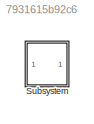
MODEL slx_7931615b92c6
KIND model
CONFIG AbsTol = auto
CONFIG EnableMultiTasking = off
CONFIG FixedStep = 1/64
CONFIG MaxStep = auto
CONFIG MinStep = auto
CONFIG RelTol = 1e-3
CONFIG SampleTimeConstraint = Unconstrained
CONFIG SolverName = ode4
CONFIG StartTime = 0.0
CONFIG StopTime = 100.0
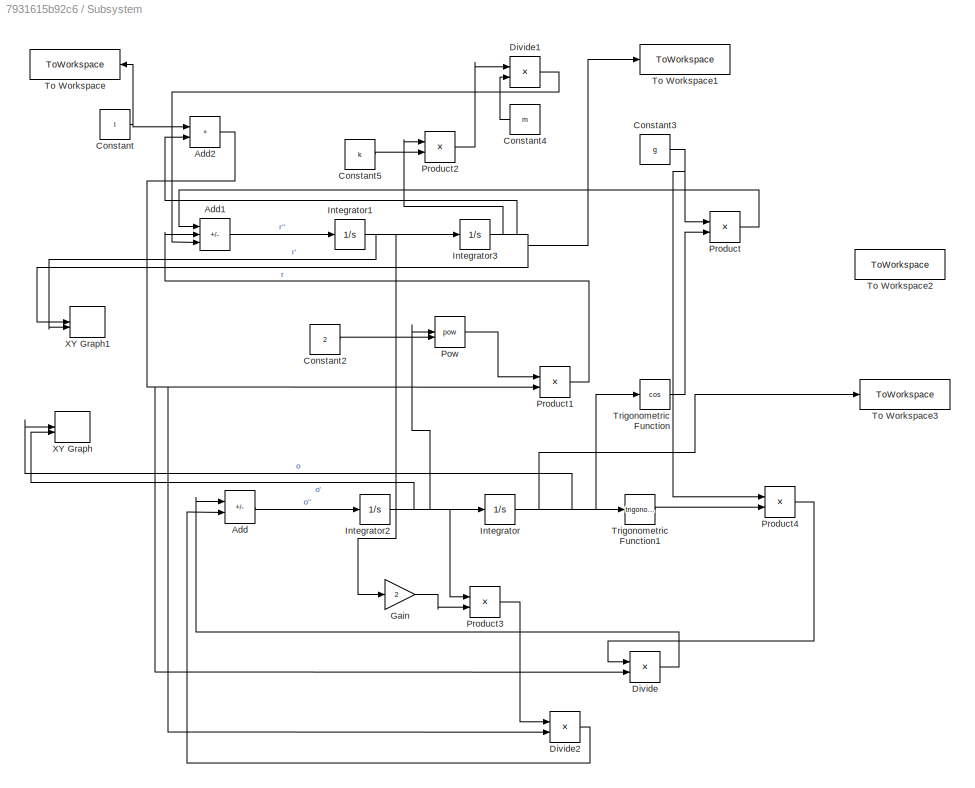
BLOCK [SubSystem] Subsystem
BLOCK [Sum] Subsystem/Add
  IconShape = rectangular
  Inputs = --
BLOCK [Sum] Subsystem/Add1
  IconShape = rectangular
  Inputs = ++-
BLOCK [Sum] Subsystem/Add2
  IconShape = rectangular
BLOCK [Constant] Subsystem/Constant
  Value = l
BLOCK [Constant] Subsystem/Constant2
  Value = 2
BLOCK [Constant] Subsystem/Constant3
  Value = g
BLOCK [Constant] Subsystem/Constant4
  NameLocation = top
  Value = m
BLOCK [Constant] Subsystem/Constant5
  Value = k
BLOCK [Product] Subsystem/Divide
  Inputs = */
BLOCK [Product] Subsystem/Divide1
  Inputs = */
BLOCK [Product] Subsystem/Divide2
  Inputs = */
BLOCK [Gain] Subsystem/Gain
  Gain = 2
BLOCK [Integrator] Subsystem/Integrator
  InitialCondition = (o0*pi)/180
BLOCK [Integrator] Subsystem/Integrator1
  InitialCondition = r_prim_0
BLOCK [Integrator] Subsystem/Integrator2
  InitialCondition = (o_prim_0*pi)/180
BLOCK [Integrator] Subsystem/Integrator3
  InitialCondition = r0
BLOCK [Math] Subsystem/Pow
  Operator = pow
  RndMeth = Zero
  SignedPower = on
BLOCK [Product] Subsystem/Product
BLOCK [Product] Subsystem/Product1
BLOCK [Product] Subsystem/Product2
BLOCK [Product] Subsystem/Product3
BLOCK [Product] Subsystem/Product4
BLOCK [ToWorkspace] Subsystem/To Workspace
  FixptAsFi = on
  MaxDataPoints = inf
  NameLocation = top
  SampleTime = -1
  SaveFormat = Timeseries
  VariableName = l_output
BLOCK [ToWorkspace] Subsystem/To Workspace1
  FixptAsFi = on
  MaxDataPoints = inf
  SampleTime = -1
  SaveFormat = Timeseries
  VariableName = r_output
BLOCK [ToWorkspace] Subsystem/To Workspace2
  FixptAsFi = on
  MaxDataPoints = inf
  SampleTime = -1
  SaveFormat = Timeseries
  VariableName = simout
BLOCK [ToWorkspace] Subsystem/To Workspace3
  FixptAsFi = on
  MaxDataPoints = inf
  SampleTime = -1
  SaveFormat = Timeseries
  VariableName = theta
BLOCK [Trigonometry] Subsystem/Trigonometric Function
  Operator = cos
BLOCK [Trigonometry] Subsystem/Trigonometric Function1
BLOCK [Record] Subsystem/XY Graph
  CompatibilityTag = XY
  FileSettingsInternal = {"entries":[{"content":{"excelSettings":{"content":{},"type":"Streamout.ExcelSettings"}},"type":"Streamout.FileSettingStorage","uuid":""}],"packageUris":["http:\/\/schema.mathworks.com\/mf0\/streamout_blocks\/R2020a"],"version":"1.0"}
  Layout = [1 1]
  SignalsInternal = {"entries":[{"content":{"signals":[{"content":{"blockPath":[],"dimensions":[1],"domain":"","lineColor":"#a2142f","plots":[ 1 ],"port":1,"sid":[""],"signalID":1,"signalName":"o"},"type":"RecordBlkView.Signal","uuid":""},{"content":{"blockPath":[],"dimensions":[1],"domain":"","lineColor":"#139fff","plots":[ 1 ],"port":2,"sid":[""],"signalID":2,"signalName":"o'"},"type":"RecordBlkView.Signal","uuid":...<+149ch>
  VisualizationBindings = {"xyplotplugin":{"info":[{"series":[{"bindingParametersList":[{"parameter":"X-Axis","signalID":1,"signalName":"o"},{"parameter":"Y-Axis","signalID":2,"signalName":"o'"}],"seriesID":0}],"subplotID":1}]}}
BLOCK [Record] Subsystem/XY Graph1
  CompatibilityTag = XY
  FileSettingsInternal = {"entries":[{"content":{"excelSettings":{"content":{},"type":"Streamout.ExcelSettings"}},"type":"Streamout.FileSettingStorage","uuid":""}],"packageUris":["http:\/\/schema.mathworks.com\/mf0\/streamout_blocks\/R2020a"],"version":"1.0"}
  Layout = [1 1]
  SignalsInternal = {"entries":[{"content":{"signals":[{"content":{"blockPath":[],"dimensions":[1],"domain":"","lineColor":"#a2142f","plots":[ 1 ],"port":1,"sid":[""],"signalID":1,"signalName":"r"},"type":"RecordBlkView.Signal","uuid":""},{"content":{"blockPath":[],"dimensions":[1],"domain":"","lineColor":"#139fff","plots":[ 1 ],"port":2,"sid":[""],"signalID":2,"signalName":"r'"},"type":"RecordBlkView.Signal","uuid":...<+149ch>
  VisualizationBindings = {"xyplotplugin":{"info":[{"series":[{"bindingParametersList":[{"parameter":"X-Axis","signalID":1,"signalName":"r"},{"parameter":"Y-Axis","signalID":2,"signalName":"r'"}],"seriesID":0}],"subplotID":1}]}}
LINE Subsystem/Add1:1 -> Subsystem/Integrator1:1
NET Subsystem/Add2:1 -> Subsystem/Divide2:2, Subsystem/Divide:2, Subsystem/Product1:2
LINE Subsystem/Add:1 -> Subsystem/Integrator2:1
LINE Subsystem/Constant2:1 -> Subsystem/Pow:2
NET Subsystem/Constant3:1 -> Subsystem/Product4:1, Subsystem/Product:1
LINE Subsystem/Constant4:1 -> Subsystem/Divide1:2
LINE Subsystem/Constant5:1 -> Subsystem/Product2:2
NET Subsystem/Constant:1 -> Subsystem/Add2:1, Subsystem/To Workspace:1
LINE Subsystem/Divide1:1 -> Subsystem/Add1:3
LINE Subsystem/Divide2:1 -> Subsystem/Add:2
LINE Subsystem/Divide:1 -> Subsystem/Add:1
LINE Subsystem/Gain:1 -> Subsystem/Product3:2
NET Subsystem/Integrator1:1 -> Subsystem/Gain:1, Subsystem/Integrator3:1, Subsystem/XY Graph1:2
NET Subsystem/Integrator2:1 -> Subsystem/Integrator:1, Subsystem/Pow:1, Subsystem/Product3:1, Subsystem/XY Graph:2
NET Subsystem/Integrator3:1 -> Subsystem/Add2:2, Subsystem/Product2:1, Subsystem/To Workspace1:1, Subsystem/XY Graph1:1
NET Subsystem/Integrator:1 -> Subsystem/To Workspace3:1, Subsystem/Trigonometric Function1:1, Subsystem/Trigonometric Function:1, Subsystem/XY Graph:1
LINE Subsystem/Pow:1 -> Subsystem/Product1:1
LINE Subsystem/Product1:1 -> Subsystem/Add1:2
LINE Subsystem/Product2:1 -> Subsystem/Divide1:1
LINE Subsystem/Product3:1 -> Subsystem/Divide2:1
LINE Subsystem/Product4:1 -> Subsystem/Divide:1
LINE Subsystem/Product:1 -> Subsystem/Add1:1
LINE Subsystem/Trigonometric Function1:1 -> Subsystem/Product4:2
LINE Subsystem/Trigonometric Function:1 -> Subsystem/Product:2
note: NET lines group one-source signal fan-out (src -> all destinations, sorted); 1:1 wires keep LINE
